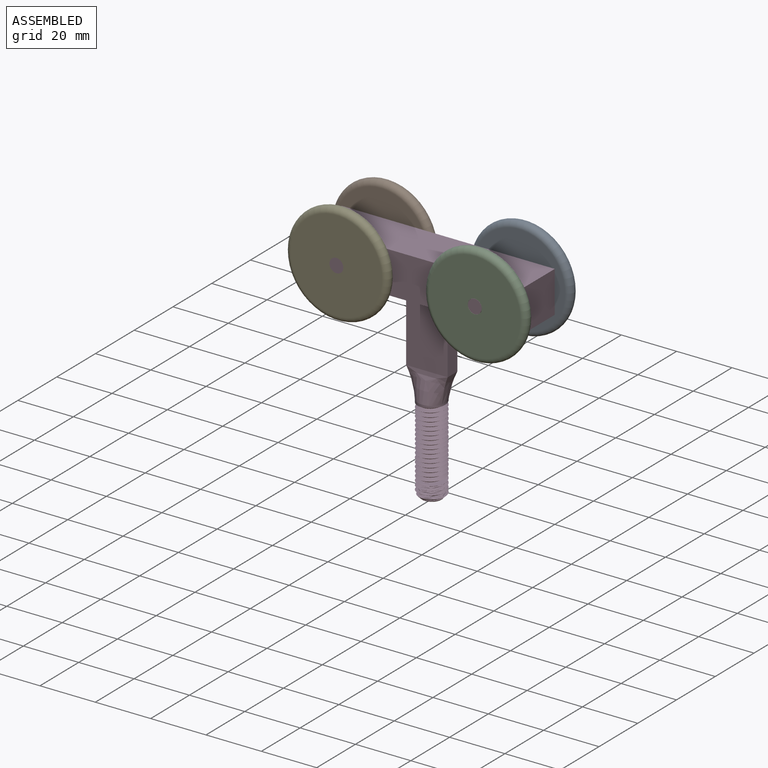
[diagram: assembled view]
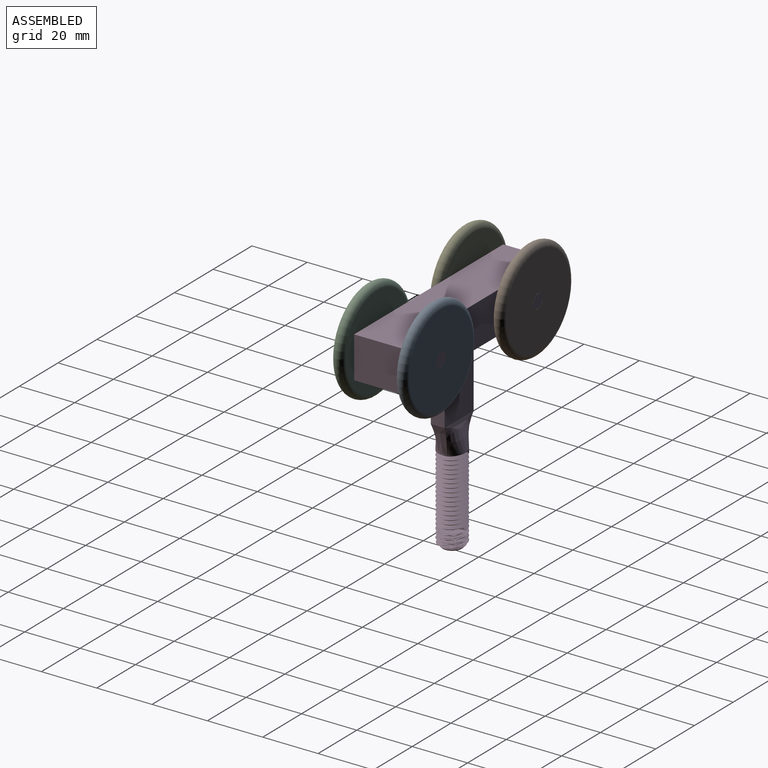
[diagram: assembled view, second angle]
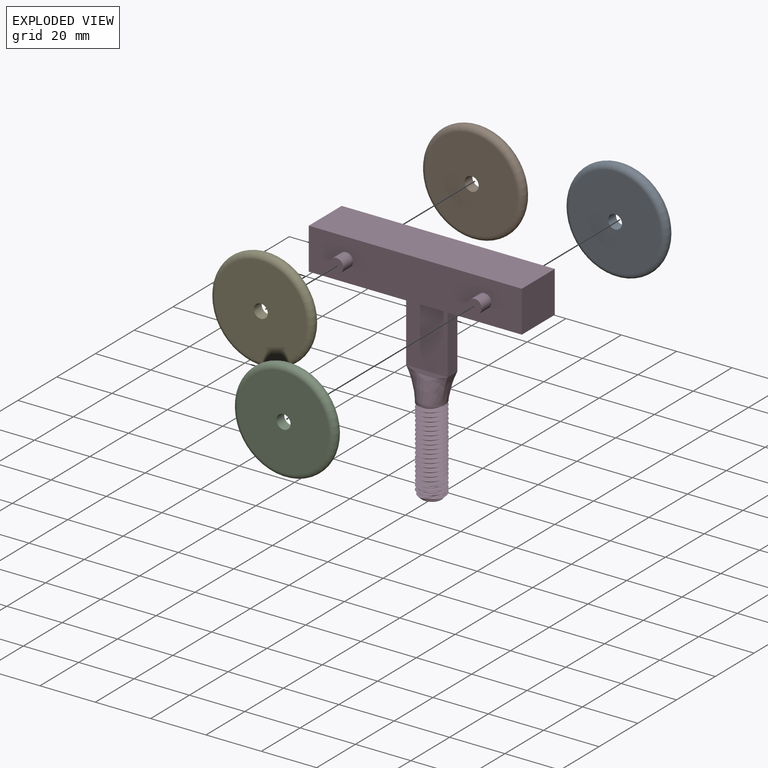
[diagram: exploded view]
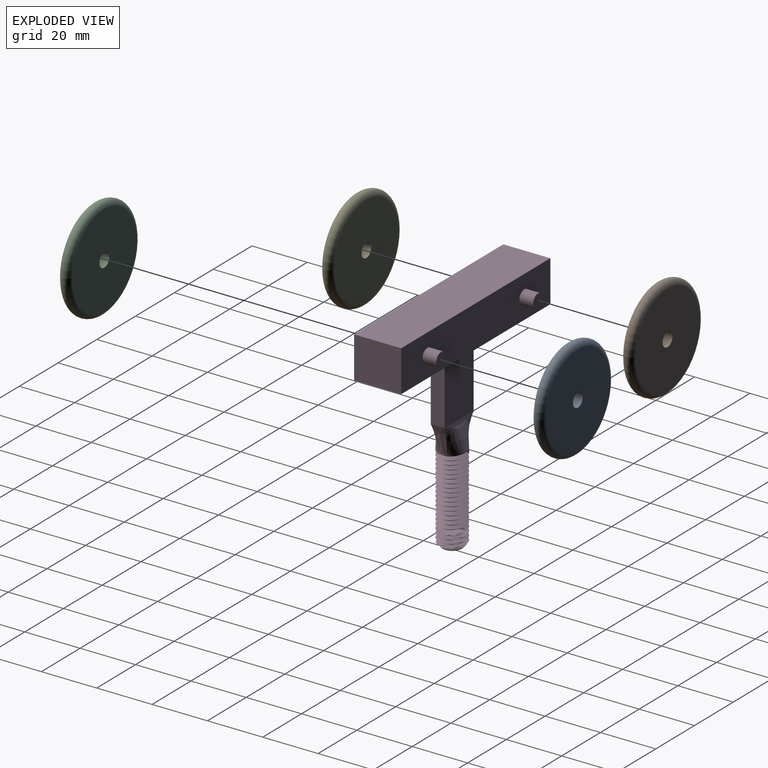
[diagram: exploded view, second angle]
ASSEMBLY  parts=5 mates=4
PART A: 4 faces, bbox 40.1x4x40.1 mm
  f0: torus R=16.51mm, axis (0,-1,0), area 701.9mm2, adj f1,f3
  f1: plane 33.01x33.01mm, normal (0,1,0), area 836.2mm2, adj f0,f2
  f2: cylinder r=2.51mm len=5.01mm, axis (0,-1,0), area 63mm2, adj f1,f3
  f3: plane 33.01x33.01mm, normal (0,-1,0), area 836.2mm2, adj f0,f2
PART B: 4 faces, bbox 40.1x4x40.1 mm
  f0: plane 33.08x33.08mm, normal (0,1,0), area 839.1mm2, adj f1,f3
  f1: cylinder r=2.54mm len=5.08mm, axis (0,-1,0), area 63.8mm2, adj f0,f2
  f2: plane 33.08x33.08mm, normal (0,-1,0), area 839.1mm2, adj f1,f3
  f3: torus R=16.54mm, axis (0,-1,0), area 703.2mm2, adj f0,f2
PART C: 4 faces, bbox 40.1x4x40.1 mm
  f0: plane 33.07x33.07mm, normal (0,1,0), area 838.9mm2, adj f1,f3
  f1: cylinder r=2.54mm len=5.07mm, axis (0,-1,0), area 63.8mm2, adj f0,f2
  f2: plane 33.07x33.07mm, normal (0,-1,0), area 838.9mm2, adj f1,f3
  f3: torus R=16.54mm, axis (0,-1,0), area 703.1mm2, adj f0,f2
PART D: 28 faces, bbox 77x27x82.2 mm
  f0: plane 77x15mm, normal (0,-1,0), area 1115.7mm2, adj f1,f2,f3,f4,f5,f7
  f1: plane 17x15mm, normal (1,0,0), area 255mm2, adj f0,f3,f4,f9
  f2: plane 17x15mm, normal (-1,0,0), area 255mm2, adj f0,f3,f4,f9
  f3: plane 77x17mm, normal (0,0,1), area 1309mm2, adj f0,f1,f2,f9
  f4: plane 77x17mm, normal (0,0,-1), area 1234mm2, adj f0,f1,f2,f9,f14,f15,f16,f17
  f5: cylinder r=2.5mm len=5mm, axis (0,1,0), area 78.5mm2, adj f0,f6
  f6: plane 5x5mm, normal (0,-1,0), area 19.6mm2, adj f5
  f7: cylinder r=2.5mm len=5mm, axis (0,1,0), area 78.5mm2, adj f0,f8
  f8: plane 5x5mm, normal (0,-1,0), area 19.6mm2, adj f7
  f9: plane 77x15mm, normal (0,1,0), area 1115.7mm2, adj f1,f2,f3,f4,f10,f12
  f10: cylinder r=2.5mm len=5mm, axis (0,-1,0), area 78.5mm2, adj f9,f11
  f11: plane 5x5mm, normal (0,1,0), area 19.6mm2, adj f10
  f12: cylinder r=2.5mm len=5mm, axis (0,-1,0), area 78.5mm2, adj f9,f13
  f13: plane 5x5mm, normal (0,1,0), area 19.6mm2, adj f12
  f14: plane 24.5x15mm, normal (0,-1,0), area 367.5mm2, adj f4,f15,f17,f20
  f15: plane 24.5x5mm, normal (-1,0,0), area 122.5mm2, adj f4,f14,f16,f19
  f16: plane 24.5x15mm, normal (0,1,0), area 367.5mm2, adj f4,f15,f17,f18
  f17: plane 24.5x5mm, normal (1,0,0), area 122.5mm2, adj f4,f14,f16,f21
  f18: bspline ~15x10mm, area 130.8mm2, adj f16,f19,f21,f22
  f19: bspline ~10x5mm, area 41.1mm2, adj f15,f18,f20,f22
  f20: bspline ~15x10mm, area 130.9mm2, adj f14,f19,f21,f22
  f21: bspline ~10x5mm, area 41.1mm2, adj f17,f18,f20,f22
  f22: cylinder r=5mm len=30.5mm, axis (0,0,1), area 170.7mm2, adj f18,f19,f20,f21,f24,f25,f26,f27
  f23: plane 7x7mm, normal (0,0,-1), area 38.5mm2, adj f24
  f24: cone r=5mm half-angle=45deg, axis (0,0,1), area 30.6mm2, adj f22,f23,f26,f27
  f25: plane 1.49x1.12mm, normal (0.87,0.5,0), area 1mm2, adj f22,f26,f27
  f26: bspline ~32x11.55mm, area 839.3mm2, adj f22,f24,f25,f27
  f27: bspline ~32x11.55mm, area 820.1mm2, adj f22,f24,f25,f26
PART E: 4 faces, bbox 40.1x4x40.1 mm
  f0: cylinder r=2.5mm len=5mm, axis (0,-1,0), area 62.9mm2, adj f1,f3
  f1: plane 33x33mm, normal (0,-1,0), area 835.7mm2, adj f0,f2
  f2: torus R=16.5mm, axis (0,-1,0), area 701.7mm2, adj f1,f3
  f3: plane 33x33mm, normal (0,1,0), area 835.7mm2, adj f0,f2
PLACE A t=(-38.5,-12.75,0)mm
PLACE B rot(axis=(0,-1,0),174.4deg) t=(-87.64,-12.75,17.42)mm
PLACE C rot(axis=(0,-1,0),166.1deg) t=(12.57,-12.75,8.76)mm
PLACE D t=(-38.5,-12.75,0)mm fixed
PLACE E t=(-38.5,-12.75,0)mm
MATE revolute A.f2 <-> D.f7  axis (0,1,0) through (-13.5,5,7.5)mm
MATE revolute B.f3 <-> D.f10  axis (0,-1,0) through (-63.5,5,7.5)mm
MATE revolute E.f0 <-> D.f10  axis (0,-1,0) through (-63.5,-22,7.5)mm
MATE revolute C.f3 <-> D.f7  axis (0,-1,0) through (-13.5,-22,7.5)mm
